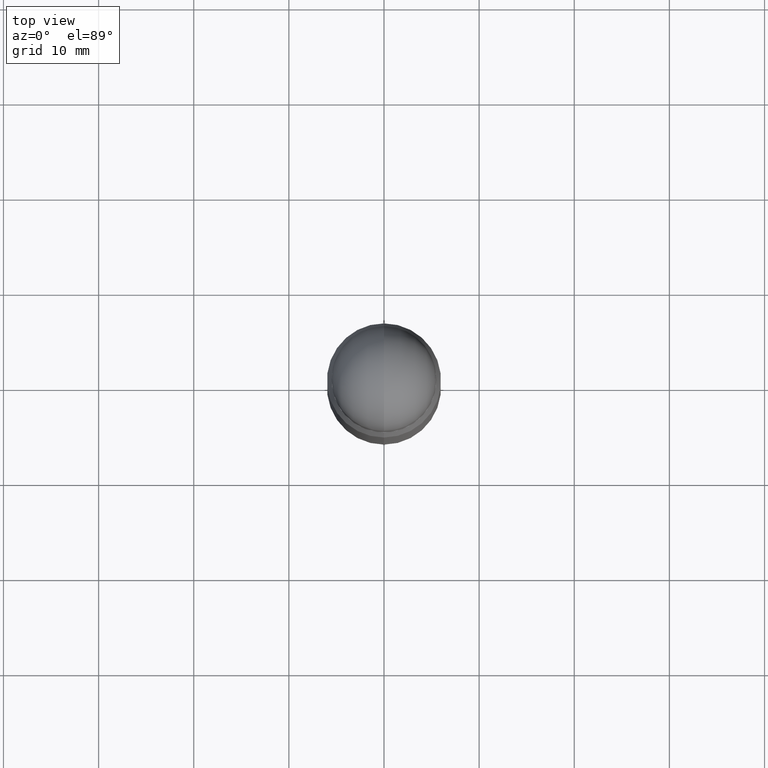
[diagram: clean part render]
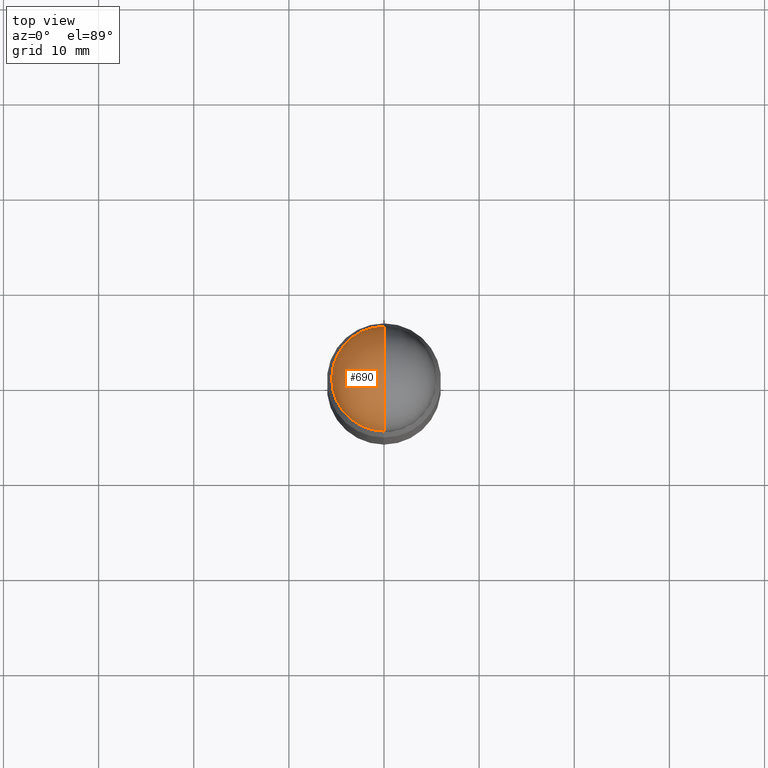
[diagram: same view with one face highlighted and labeled with its STEP entity id]
A machine part, top view. The second image highlights one B-rep face of the part: STEP entity #690.
In plain terms, the highlighted spherical surface has radius 5.5004 mm.
Its self-contained STEP definition (entity closure, byte-faithful):
#19 = CARTESIAN_POINT ( 'NONE',  ( 6.713302002095624841E-29, -7.396859276218296457E-16, -0.2165500000000001868 ) ) ;
#42 = AXIS2_PLACEMENT_3D ( 'NONE', #559, #125, #935 ) ;
#56 = CIRCLE ( 'NONE', #336, 0.2165500000000003811 ) ;
#69 = DIRECTION ( 'NONE',  ( -1.000000000000000000, 6.982962677686265922E-15, 1.566701062080016245E-31 ) ) ;
#87 = DIRECTION ( 'NONE',  ( 2.445468806185136597E-29, 3.479614466977828254E-15, 1.000000000000000000 ) ) ;
#101 = CARTESIAN_POINT ( 'NONE',  ( -0.2165500000000001035, 1.323835882843576813E-16, -0.2165500000000001868 ) ) ;
#125 = DIRECTION ( 'NONE',  ( 1.000000000000000000, -6.982962677686265922E-15, -1.566701062080038578E-31 ) ) ;
#134 = CARTESIAN_POINT ( 'NONE',  ( 7.252127585071107106E-29, 2.708444841998830582E-17, 2.048885995248197414E-16 ) ) ;
#136 = EDGE_CURVE ( 'NONE', #1086, #832, #56, .T. ) ;
#150 = ORIENTED_EDGE ( 'NONE', *, *, #401, .T. ) ;
#214 = FACE_OUTER_BOUND ( 'NONE', #491, .T. ) ;
#244 = DIRECTION ( 'NONE',  ( 1.000000000000000000, -6.982962677686265922E-15, 0.000000000000000000 ) ) ;
#261 = ORIENTED_EDGE ( 'NONE', *, *, #327, .T. ) ;
#327 = EDGE_CURVE ( 'NONE', #506, #592, #800, .T. ) ;
#336 = AXIS2_PLACEMENT_3D ( 'NONE', #19, #705, #715 ) ;
#401 = EDGE_CURVE ( 'NONE', #1086, #506, #984, .T. ) ;
#491 = EDGE_LOOP ( 'NONE', ( #1106, #150, #261, #886 ) ) ;
#506 = VERTEX_POINT ( 'NONE', #618 ) ;
#534 = AXIS2_PLACEMENT_3D ( 'NONE', #605, #69, #1098 ) ;
#559 = CARTESIAN_POINT ( 'NONE',  ( 6.713302002095624841E-29, -7.396859276218296457E-16, -0.2165500000000001868 ) ) ;
#574 = AXIS2_PLACEMENT_3D ( 'NONE', #902, #843, #807 ) ;
#592 = VERTEX_POINT ( 'NONE', #101 ) ;
#605 = CARTESIAN_POINT ( 'NONE',  ( 6.713302002095624841E-29, -7.396859276218296457E-16, -0.2165500000000001868 ) ) ;
#616 = EDGE_CURVE ( 'NONE', #592, #832, #1021, .T. ) ;
#618 = CARTESIAN_POINT ( 'NONE',  ( 1.512160567853029651E-15, 0.2165499999999994929, -0.2165500000000009362 ) ) ;
#664 = AXIS2_PLACEMENT_3D ( 'NONE', #1113, #87, #244 ) ;
#690 = ADVANCED_FACE ( 'NONE', ( #214 ), #911, .T. ) ;
#705 = DIRECTION ( 'NONE',  ( 1.000000000000000000, -6.860497997771530774E-15, -5.827999781331232286E-31 ) ) ;
#715 = DIRECTION ( 'NONE',  ( 6.860497997771531562E-15, 1.000000000000000000, 0.000000000000000000 ) ) ;
#800 = CIRCLE ( 'NONE', #664, 0.2165500000000001035 ) ;
#807 = DIRECTION ( 'NONE',  ( 1.000000000000000000, -6.982962677686265922E-15, 0.000000000000000000 ) ) ;
#832 = VERTEX_POINT ( 'NONE', #1047 ) ;
#843 = DIRECTION ( 'NONE',  ( 2.445468806185136597E-29, 3.479614466977828254E-15, 1.000000000000000000 ) ) ;
#886 = ORIENTED_EDGE ( 'NONE', *, *, #616, .T. ) ;
#902 = CARTESIAN_POINT ( 'NONE',  ( 6.691414020924079206E-29, -7.710307624460063053E-16, -0.2165500000000001868 ) ) ;
#911 = SPHERICAL_SURFACE ( 'NONE', #42, 0.2165500000000003811 ) ;
#935 = DIRECTION ( 'NONE',  ( 6.982962677686265922E-15, 1.000000000000000000, -3.469213568495363757E-15 ) ) ;
#984 = CIRCLE ( 'NONE', #534, 0.2165500000000003811 ) ;
#1021 = CIRCLE ( 'NONE', #574, 0.2165500000000001035 ) ;
#1047 = CARTESIAN_POINT ( 'NONE',  ( -1.485640841417359468E-15, -0.2165500000000009917, -0.2165499999999994374 ) ) ;
#1086 = VERTEX_POINT ( 'NONE', #134 ) ;
#1098 = DIRECTION ( 'NONE',  ( -6.982962677686265922E-15, -1.000000000000000000, 0.000000000000000000 ) ) ;
#1106 = ORIENTED_EDGE ( 'NONE', *, *, #136, .F. ) ;
#1113 = CARTESIAN_POINT ( 'NONE',  ( 6.691414020924079206E-29, -7.710307624460063053E-16, -0.2165500000000001868 ) ) ;